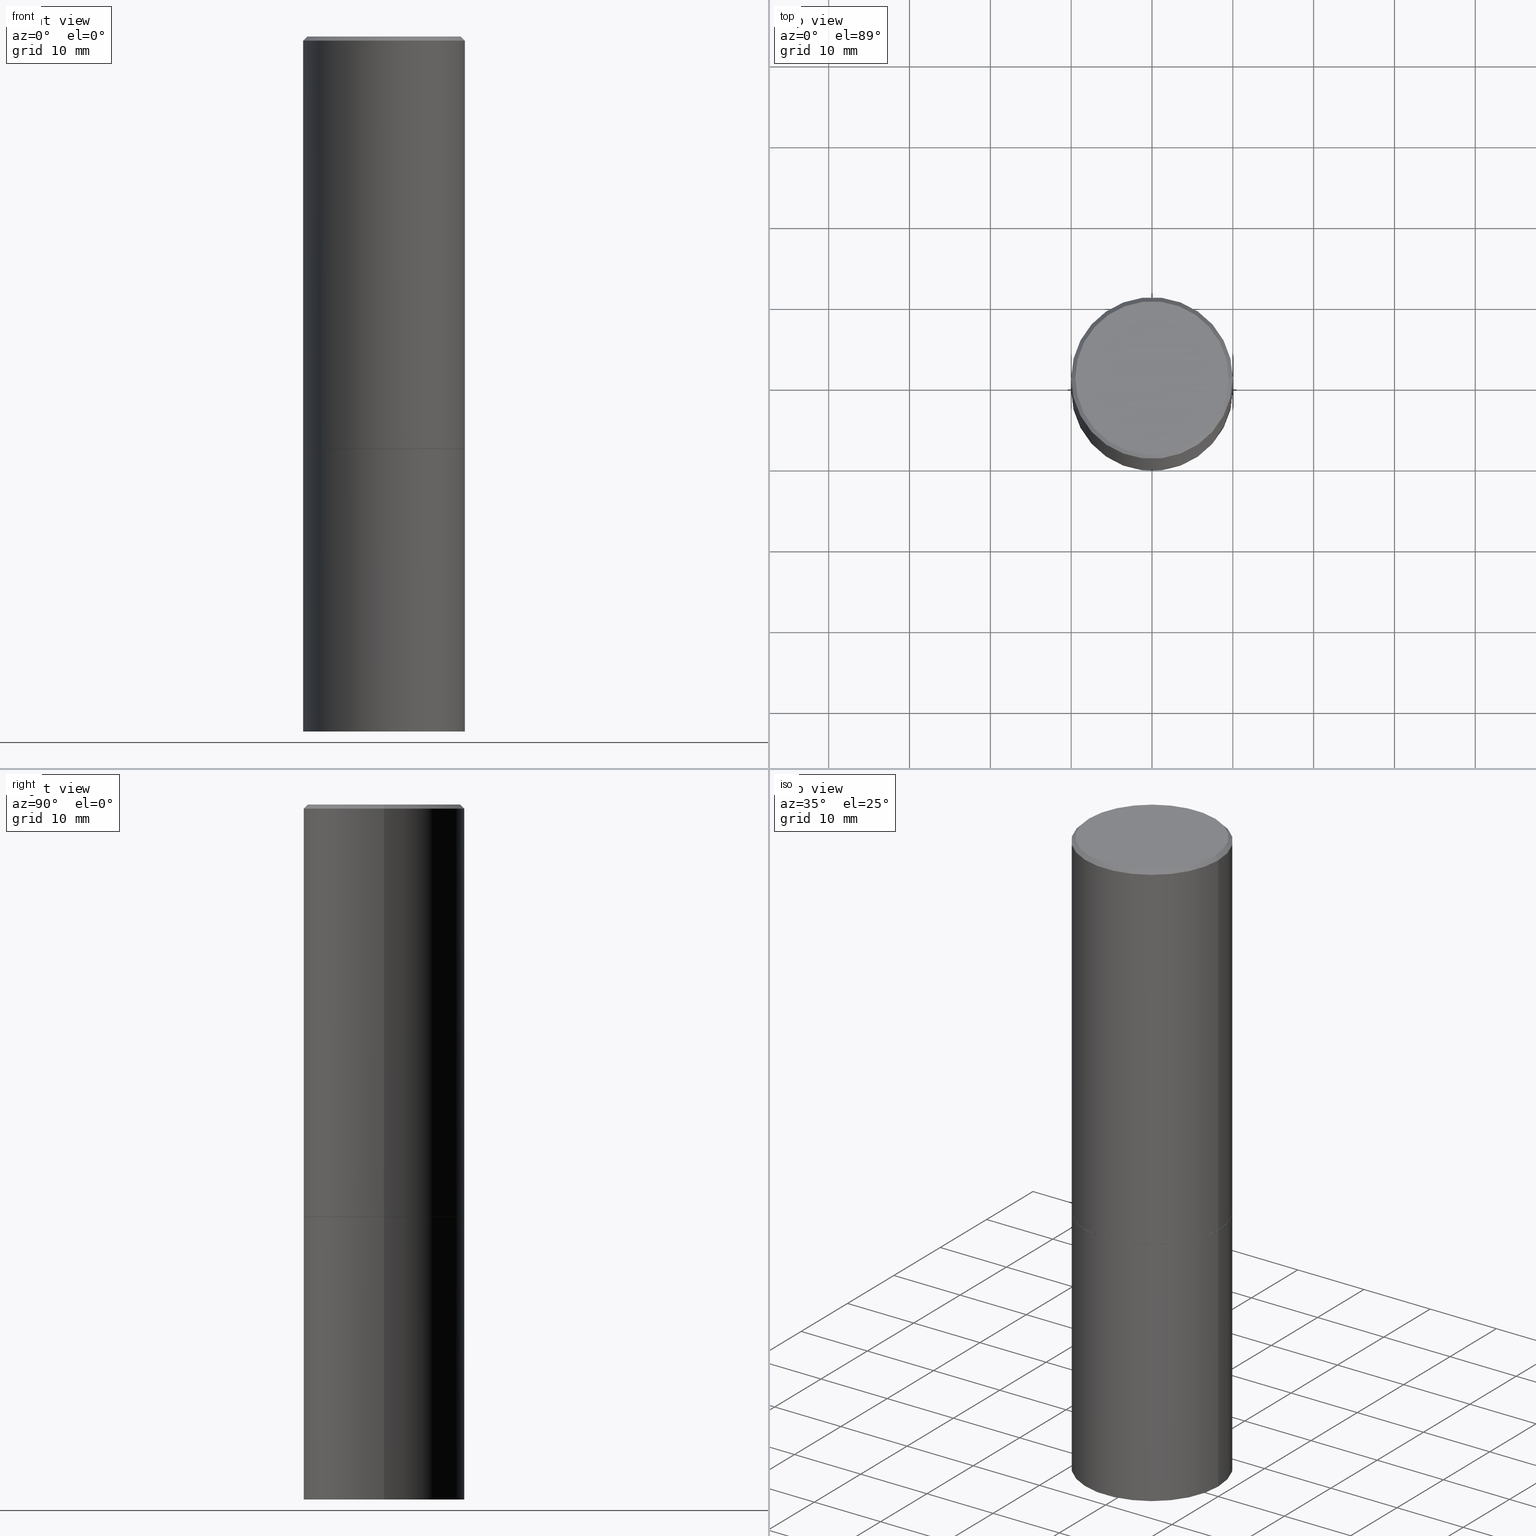
[diagram: canonical four-view strip — front | top / right | iso, engineering-drawing reading convention]
A machine part, canonical four-view strip (front | top / right | iso — engineering-drawing reading convention). The complete STEP part file that produces these views, byte-faithful:
ISO-10303-21;
HEADER;
FILE_DESCRIPTION (( 'STEP AP203' ),
    '1' );
FILE_NAME ('44990.STEP',
    '2024-02-28T08:26:00',
    ( '' ),
    ( '' ),
    'SwSTEP 2.0',
    'SolidWorks 2023',
    '' );
FILE_SCHEMA (( 'CONFIG_CONTROL_DESIGN' ));
ENDSEC;

DATA;
#1 = EDGE_LOOP ( 'NONE', ( #348, #181 ) ) ;
#2 = VECTOR ( 'NONE', #204, 39.37007874015748854 ) ;
#3 = CC_DESIGN_APPROVAL ( #314, ( #149 ) ) ;
#4 = EDGE_CURVE ( 'NONE', #269, #94, #365, .T. ) ;
#5 = PERSON_AND_ORGANIZATION ( #157, #224 ) ;
#6 = ORIENTED_EDGE ( 'NONE', *, *, #332, .F. ) ;
#7 = MECHANICAL_CONTEXT ( 'NONE', #191, 'mechanical' ) ;
#8 = ORIENTED_EDGE ( 'NONE', *, *, #80, .T. ) ;
#9 = PERSON_AND_ORGANIZATION_ROLE ( 'classification_officer' ) ;
#10 = CARTESIAN_POINT ( 'NONE',  ( 4.890937612370283668E-31, -6.982962677686305168E-17, -0.02000000000000004205 ) ) ;
#11 = EDGE_LOOP ( 'NONE', ( #255, #279, #283, #26 ) ) ;
#12 = DIRECTION ( 'NONE',  ( 2.438088387897960049E-29, -3.491481338843145188E-15, -1.000000000000000000 ) ) ;
#13 = CYLINDRICAL_SURFACE ( 'NONE', #30, 0.3936999999999999389 ) ;
#14 = AXIS2_PLACEMENT_3D ( 'NONE', #142, #330, #135 ) ;
#15 = FACE_OUTER_BOUND ( 'NONE', #11, .T. ) ;
#16 = FACE_OUTER_BOUND ( 'NONE', #318, .T. ) ;
#17 = PLANE ( 'NONE',  #276 ) ;
#18 = CC_DESIGN_PERSON_AND_ORGANIZATION_ASSIGNMENT ( #344, #56, ( #227 ) ) ;
#19 = DIRECTION ( 'NONE',  ( 1.000000000000000000, -6.982962677686265922E-15, 4.876176775795935793E-29 ) ) ;
#20 = DIRECTION ( 'NONE',  ( -2.445468806185136877E-29, 3.491481338843145188E-15, 1.000000000000000000 ) ) ;
#21 = CARTESIAN_POINT ( 'NONE',  ( 0.000000000000000000, 0.000000000000000000, 0.000000000000000000 ) ) ;
#22 = CIRCLE ( 'NONE', #41, 0.3937000000000000499 ) ;
#23 = APPROVAL_ROLE ( '' ) ;
#24 = ORIENTED_EDGE ( 'NONE', *, *, #108, .F. ) ;
#25 = PERSON_AND_ORGANIZATION ( #157, #224 ) ;
#26 = ORIENTED_EDGE ( 'NONE', *, *, #80, .F. ) ;
#27 = EDGE_CURVE ( 'NONE', #170, #94, #174, .T. ) ;
#28 = EDGE_CURVE ( 'NONE', #231, #362, #55, .T. ) ;
#29 = ORIENTED_EDGE ( 'NONE', *, *, #271, .T. ) ;
#30 = AXIS2_PLACEMENT_3D ( 'NONE', #267, #64, #213 ) ;
#31 = COORDINATED_UNIVERSAL_TIME_OFFSET ( 5, 0, .BEHIND. ) ;
#32 = CARTESIAN_POINT ( 'NONE',  ( 4.890937612370283668E-31, -6.982962677686305168E-17, -0.02000000000000004205 ) ) ;
#33 = PERSON_AND_ORGANIZATION ( #157, #224 ) ;
#34 = DIRECTION ( 'NONE',  ( -2.445468806185136597E-29, 3.491481338843145583E-15, 1.000000000000000000 ) ) ;
#35 = DIRECTION ( 'NONE',  ( 1.000000000000000000, -6.982962677686266711E-15, 0.000000000000000000 ) ) ;
#36 = DIRECTION ( 'NONE',  ( 1.000000000000000000, -6.982962677686267499E-15, 0.000000000000000000 ) ) ;
#37 = DIRECTION ( 'NONE',  ( 1.000000000000000000, -6.982962677686268288E-15, 0.000000000000000000 ) ) ;
#38 = EDGE_CURVE ( 'NONE', #113, #274, #147, .T. ) ;
#39 = CARTESIAN_POINT ( 'NONE',  ( -0.3936999999999999389, 2.797406750687513998E-15, -1.936584745033356455E-29 ) ) ;
#40 = CIRCLE ( 'NONE', #360, 0.3736999999999998101 ) ;
#41 = AXIS2_PLACEMENT_3D ( 'NONE', #364, #82, #105 ) ;
#42 = CARTESIAN_POINT ( 'NONE',  ( -0.3936999999999998279, 2.679362779428219130E-15, -0.02000000000000004205 ) ) ;
#43 = DIRECTION ( 'NONE',  ( 0.7071067811865464625, -7.319954787623252890E-15, -0.7071067811865485719 ) ) ;
#44 = PLANE ( 'NONE',  #14 ) ;
#45 = AXIS2_PLACEMENT_3D ( 'NONE', #292, #100, #128 ) ;
#46 = APPROVAL_PERSON_ORGANIZATION ( #120, #314, #23 ) ;
#47 = DIRECTION ( 'NONE',  ( 1.000000000000000000, -6.982962677686265922E-15, 4.876176775795935793E-29 ) ) ;
#48 = ORIENTED_EDGE ( 'NONE', *, *, #38, .T. ) ;
#49 = EDGE_CURVE ( 'NONE', #335, #199, #236, .T. ) ;
#50 = APPROVAL ( #112, 'UNSPECIFIED' ) ;
#51 = DIRECTION ( 'NONE',  ( 1.000000000000000000, -6.982962677686267499E-15, 0.000000000000000000 ) ) ;
#52 = COORDINATED_UNIVERSAL_TIME_OFFSET ( 5, 0, .BEHIND. ) ;
#53 = PRODUCT_RELATED_PRODUCT_CATEGORY ( 'detail', '', ( #326 ) ) ;
#54 = ORIENTED_EDGE ( 'NONE', *, *, #175, .F. ) ;
#55 = LINE ( 'NONE', #281, #58 ) ;
#56 = PERSON_AND_ORGANIZATION_ROLE ( 'creator' ) ;
#57 = ORIENTED_EDGE ( 'NONE', *, *, #163, .F. ) ;
#58 = VECTOR ( 'NONE', #180, 39.37007874015748854 ) ;
#59 =( GEOMETRIC_REPRESENTATION_CONTEXT ( 3 ) GLOBAL_UNCERTAINTY_ASSIGNED_CONTEXT ( ( #302 ) ) GLOBAL_UNIT_ASSIGNED_CONTEXT ( ( #296, #192, #137 ) ) REPRESENTATION_CONTEXT ( 'NONE', 'WORKASPACE' ) );
#60 = APPROVAL_ROLE ( '' ) ;
#61 = EDGE_LOOP ( 'NONE', ( #259, #24 ) ) ;
#62 = PERSON_AND_ORGANIZATION_ROLE ( 'creator' ) ;
#63 = CARTESIAN_POINT ( 'NONE',  ( 4.890937612370283668E-31, -6.982962677686305168E-17, -0.02000000000000004205 ) ) ;
#64 = DIRECTION ( 'NONE',  ( -2.445468806185136597E-29, 3.491481338843145583E-15, 1.000000000000000000 ) ) ;
#65 = CONICAL_SURFACE ( 'NONE', #242, 0.3936999999999998279, 0.7853981633974468357 ) ;
#66 = CARTESIAN_POINT ( 'NONE',  ( 4.890937612370283668E-31, -6.982962677686305168E-17, -0.02000000000000004205 ) ) ;
#67 = ADVANCED_FACE ( 'NONE', ( #313 ), #65, .T. ) ;
#68 = CARTESIAN_POINT ( 'NONE',  ( -0.3937000000000000499, -7.408604380961292612E-16, -2.006800000000000139 ) ) ;
#69 = DIRECTION ( 'NONE',  ( -2.445468806185136597E-29, 3.491481338843145583E-15, 1.000000000000000000 ) ) ;
#70 = AXIS2_PLACEMENT_3D ( 'NONE', #160, #187, #158 ) ;
#71 = LOCAL_TIME ( 3, 26, 0.000000000000000000, #52 ) ;
#72 = CARTESIAN_POINT ( 'NONE',  ( 0.3736999999999998101, -2.667287895133366781E-15, 8.537024980219274507E-18 ) ) ;
#73 = DIRECTION ( 'NONE',  ( 2.445468806185136597E-29, -3.491481338843145583E-15, -1.000000000000000000 ) ) ;
#74 = LINE ( 'NONE', #251, #282 ) ;
#75 = ORIENTED_EDGE ( 'NONE', *, *, #356, .F. ) ;
#76 = DIRECTION ( 'NONE',  ( -2.438088387897960049E-29, 3.491481338843145188E-15, 1.000000000000000000 ) ) ;
#77 = CIRCLE ( 'NONE', #115, 0.3926999999999999935 ) ;
#78 = VECTOR ( 'NONE', #297, 39.37007874015748143 ) ;
#79 = ORIENTED_EDGE ( 'NONE', *, *, #136, .T. ) ;
#80 = EDGE_CURVE ( 'NONE', #94, #269, #134, .T. ) ;
#81 = ADVANCED_FACE ( 'NONE', ( #152 ), #17, .T. ) ;
#82 = DIRECTION ( 'NONE',  ( -2.445468806185136597E-29, 3.491481338843145583E-15, 1.000000000000000000 ) ) ;
#83 = ORIENTED_EDGE ( 'NONE', *, *, #27, .T. ) ;
#84 = CLOSED_SHELL ( 'NONE', ( #249, #228, #67, #272, #201, #214, #285, #303 ) ) ;
#85 = CC_DESIGN_APPROVAL ( #126, ( #164 ) ) ;
#86 = APPROVAL_DATE_TIME ( #114, #126 ) ;
#87 = ORIENTED_EDGE ( 'NONE', *, *, #346, .T. ) ;
#88 = PERSON_AND_ORGANIZATION_ROLE ( 'design_owner' ) ;
#89 = ORIENTED_EDGE ( 'NONE', *, *, #136, .F. ) ;
#90 = COORDINATED_UNIVERSAL_TIME_OFFSET ( 5, 0, .BEHIND. ) ;
#91 = DIRECTION ( 'NONE',  ( 1.000000000000000000, -6.982962677686266711E-15, 0.000000000000000000 ) ) ;
#92 = CIRCLE ( 'NONE', #294, 0.3937000000000000499 ) ;
#93 = CIRCLE ( 'NONE', #124, 0.3736999999999998101 ) ;
#94 = VERTEX_POINT ( 'NONE', #42 ) ;
#95 = LINE ( 'NONE', #190, #223 ) ;
#96 = DIRECTION ( 'NONE',  ( 1.000000000000000000, -6.982962677686265922E-15, 4.876176775795935793E-29 ) ) ;
#97 = EDGE_CURVE ( 'NONE', #231, #335, #77, .T. ) ;
#98 = CIRCLE ( 'NONE', #299, 0.3937000000000000499 ) ;
#99 = FACE_OUTER_BOUND ( 'NONE', #172, .T. ) ;
#100 = DIRECTION ( 'NONE',  ( -2.445468806185136597E-29, 3.491481338843145583E-15, 1.000000000000000000 ) ) ;
#101 = APPLICATION_CONTEXT ( 'configuration controlled 3d designs of mechanical parts and assemblies' ) ;
#102 = DIRECTION ( 'NONE',  ( -2.445468806185136597E-29, 3.491481338843145583E-15, 1.000000000000000000 ) ) ;
#103 = AXIS2_PLACEMENT_3D ( 'NONE', #66, #73, #363 ) ;
#104 = CARTESIAN_POINT ( 'NONE',  ( -0.3937000000000000499, 2.797406750687514786E-15, -1.936584745033356735E-29 ) ) ;
#105 = DIRECTION ( 'NONE',  ( 1.000000000000000000, -6.982962677686265133E-15, 0.000000000000000000 ) ) ;
#106 = ORIENTED_EDGE ( 'NONE', *, *, #356, .T. ) ;
#107 = LENGTH_MEASURE_WITH_UNIT ( LENGTH_MEASURE( 0.02539999999999999897 ), #140 );
#108 = EDGE_CURVE ( 'NONE', #340, #113, #206, .T. ) ;
#109 = ORIENTED_EDGE ( 'NONE', *, *, #4, .F. ) ;
#110 = APPROVAL_PERSON_ORGANIZATION ( #5, #50, #319 ) ;
#111 = DIRECTION ( 'NONE',  ( -2.445468806185136597E-29, 3.491481338843145583E-15, 1.000000000000000000 ) ) ;
#112 = APPROVAL_STATUS ( 'not_yet_approved' ) ;
#113 = VERTEX_POINT ( 'NONE', #355 ) ;
#114 = DATE_AND_TIME ( #230, #329 ) ;
#115 = AXIS2_PLACEMENT_3D ( 'NONE', #182, #184, #37 ) ;
#116 = EDGE_LOOP ( 'NONE', ( #197, #106, #6, #125 ) ) ;
#117 = DESIGN_CONTEXT ( 'detailed design', #101, 'design' ) ;
#118 = DATE_TIME_ROLE ( 'classification_date' ) ;
#119 = CARTESIAN_POINT ( 'NONE',  ( -0.3936999999999998279, 2.679362779428219130E-15, -0.02000000000000004205 ) ) ;
#120 = PERSON_AND_ORGANIZATION ( #157, #224 ) ;
#121 = VERTEX_POINT ( 'NONE', #354 ) ;
#122 = APPROVAL_STATUS ( 'not_yet_approved' ) ;
#123 = CARTESIAN_POINT ( 'NONE',  ( 0.3937000000000000499, -2.749192406205083217E-15, 1.919750796630860172E-29 ) ) ;
#124 = AXIS2_PLACEMENT_3D ( 'NONE', #220, #273, #221 ) ;
#125 = ORIENTED_EDGE ( 'NONE', *, *, #38, .F. ) ;
#126 = APPROVAL ( #278, 'UNSPECIFIED' ) ;
#127 = DIRECTION ( 'NONE',  ( -2.445468806185136597E-29, 3.491481338843145583E-15, 1.000000000000000000 ) ) ;
#128 = DIRECTION ( 'NONE',  ( 1.000000000000000000, -6.982962677686266711E-15, 4.876176775795935793E-29 ) ) ;
#129 = AXIS2_PLACEMENT_3D ( 'NONE', #243, #245, #264 ) ;
#130 = DIRECTION ( 'NONE',  ( -1.000000000000000000, 6.982962677686265922E-15, -4.876176775795935793E-29 ) ) ;
#131 = MANIFOLD_SOLID_BREP ( 'Body-Move/Copy2[2]', #84 ) ;
#132 = CYLINDRICAL_SURFACE ( 'NONE', #353, 0.3937000000000000499 ) ;
#133 = DIRECTION ( 'NONE',  ( -1.000000000000000000, 6.982962677686265922E-15, -4.876176775795935793E-29 ) ) ;
#134 = CIRCLE ( 'NONE', #212, 0.3936999999999998279 ) ;
#135 = DIRECTION ( 'NONE',  ( -1.000000000000000000, 6.982962677686265922E-15, -4.876176775795935793E-29 ) ) ;
#136 = EDGE_CURVE ( 'NONE', #270, #170, #40, .T. ) ;
#137 =( NAMED_UNIT ( * ) SI_UNIT ( $, .STERADIAN. ) SOLID_ANGLE_UNIT ( ) );
#138 = ORIENTED_EDGE ( 'NONE', *, *, #108, .T. ) ;
#139 = MANIFOLD_SOLID_BREP ( 'Body-Move/Copy2[1]', #188 ) ;
#140 =( LENGTH_UNIT ( ) NAMED_UNIT ( * ) SI_UNIT ( $, .METRE. ) );
#141 = EDGE_LOOP ( 'NONE', ( #178, #165 ) ) ;
#142 = CARTESIAN_POINT ( 'NONE',  ( 2.609533152651356226E-15, 0.3736999999999998101, -1.300498063835582617E-15 ) ) ;
#143 = LOCAL_TIME ( 3, 26, 0.000000000000000000, #205 ) ;
#144 = APPROVAL_DATE_TIME ( #225, #50 ) ;
#145 = DATE_AND_TIME ( #316, #143 ) ;
#146 = ORIENTED_EDGE ( 'NONE', *, *, #49, .T. ) ;
#147 = LINE ( 'NONE', #123, #235 ) ;
#148 = COORDINATED_UNIVERSAL_TIME_OFFSET ( 5, 0, .BEHIND. ) ;
#149 = PRODUCT_DEFINITION ( 'UNKNOWN', '', #227, #117 ) ;
#150 = DIRECTION ( 'NONE',  ( -2.445468806185136597E-29, 3.491481338843145583E-15, 1.000000000000000000 ) ) ;
#151 = ORIENTED_EDGE ( 'NONE', *, *, #357, .F. ) ;
#152 = FACE_OUTER_BOUND ( 'NONE', #61, .T. ) ;
#153 = CONICAL_SURFACE ( 'NONE', #177, 0.3926999999999999935, 0.7853981633974141952 ) ;
#154 = LOCAL_TIME ( 3, 26, 0.000000000000000000, #31 ) ;
#155 = CARTESIAN_POINT ( 'NONE',  ( 0.3926999999999999935, -9.752405675656666190E-15, -2.007800000000000473 ) ) ;
#156 = DIRECTION ( 'NONE',  ( 1.000000000000000000, -6.982962677686267499E-15, 0.000000000000000000 ) ) ;
#157 = PERSON ( 'UNSPECIFIED', 'UNSPECIFIED', 'UNSPECIFIED', ('UNSPECIFIED'), ('UNSPECIFIED'), ('UNSPECIFIED') ) ;
#158 = DIRECTION ( 'NONE',  ( 1.000000000000000000, -6.982962677686267499E-15, 0.000000000000000000 ) ) ;
#159 = CC_DESIGN_SECURITY_CLASSIFICATION ( #164, ( #227 ) ) ;
#160 = CARTESIAN_POINT ( 'NONE',  ( 8.279868283981636714E-29, -1.182145751705512373E-14, -3.385800000000000143 ) ) ;
#161 = DIRECTION ( 'NONE',  ( -2.445468806185136597E-29, 3.491481338843145583E-15, 1.000000000000000000 ) ) ;
#162 = CARTESIAN_POINT ( 'NONE',  ( 0.3937000000000000499, -9.759388638334352204E-15, -2.007800000000000473 ) ) ;
#163 = EDGE_CURVE ( 'NONE', #121, #274, #92, .T. ) ;
#164 = SECURITY_CLASSIFICATION ( '', '', #342 ) ;
#165 = ORIENTED_EDGE ( 'NONE', *, *, #163, .T. ) ;
#166 = FACE_OUTER_BOUND ( 'NONE', #141, .T. ) ;
#167 = PLANE ( 'NONE',  #169 ) ;
#168 = LINE ( 'NONE', #104, #78 ) ;
#169 = AXIS2_PLACEMENT_3D ( 'NONE', #304, #76, #19 ) ;
#170 = VERTEX_POINT ( 'NONE', #325 ) ;
#171 = PERSON_AND_ORGANIZATION ( #157, #224 ) ;
#172 = EDGE_LOOP ( 'NONE', ( #222, #286, #195, #54 ) ) ;
#173 = APPROVAL_DATE_TIME ( #347, #314 ) ;
#174 = LINE ( 'NONE', #119, #322 ) ;
#175 = EDGE_CURVE ( 'NONE', #199, #362, #98, .T. ) ;
#176 = EDGE_CURVE ( 'NONE', #362, #199, #183, .T. ) ;
#177 = AXIS2_PLACEMENT_3D ( 'NONE', #358, #102, #327 ) ;
#178 = ORIENTED_EDGE ( 'NONE', *, *, #332, .T. ) ;
#179 = AXIS2_PLACEMENT_3D ( 'NONE', #366, #275, #253 ) ;
#180 = DIRECTION ( 'NONE',  ( 0.7071067811865232589, -2.468850131082003836E-15, 0.7071067811865715536 ) ) ;
#181 = ORIENTED_EDGE ( 'NONE', *, *, #241, .F. ) ;
#182 = CARTESIAN_POINT ( 'NONE',  ( 4.910012269058518206E-29, -7.010196232129268988E-15, -2.007800000000000473 ) ) ;
#183 = CIRCLE ( 'NONE', #265, 0.3937000000000000499 ) ;
#184 = DIRECTION ( 'NONE',  ( -2.445468806185136597E-29, 3.491481338843145583E-15, 1.000000000000000000 ) ) ;
#185 = CARTESIAN_POINT ( 'NONE',  ( -2.087702828670439639E-46, 2.980686340760894400E-32, 8.537024980200822558E-18 ) ) ;
#186 = CC_DESIGN_DATE_AND_TIME_ASSIGNMENT ( #145, #312, ( #149 ) ) ;
#187 = DIRECTION ( 'NONE',  ( -2.445468806185136597E-29, 3.491481338843145583E-15, 1.000000000000000000 ) ) ;
#188 = CLOSED_SHELL ( 'NONE', ( #215, #81, #300, #290 ) ) ;
#189 = AXIS2_PLACEMENT_3D ( 'NONE', #21, #111, #47 ) ;
#190 = CARTESIAN_POINT ( 'NONE',  ( 0.3936999999999998279, -2.770807688499513762E-15, -0.02000000000000004205 ) ) ;
#191 = APPLICATION_CONTEXT ( 'configuration controlled 3d designs of mechanical parts and assemblies' ) ;
#192 =( NAMED_UNIT ( * ) PLANE_ANGLE_UNIT ( ) SI_UNIT ( $, .RADIAN. ) );
#193 = CC_DESIGN_DATE_AND_TIME_ASSIGNMENT ( #208, #118, ( #164 ) ) ;
#194 = CARTESIAN_POINT ( 'NONE',  ( 2.749192406205132126E-15, 0.3936999999999930000, -2.007800000000001805 ) ) ;
#195 = ORIENTED_EDGE ( 'NONE', *, *, #28, .T. ) ;
#196 = FACE_OUTER_BOUND ( 'NONE', #1, .T. ) ;
#197 = ORIENTED_EDGE ( 'NONE', *, *, #289, .T. ) ;
#198 = AXIS2_PLACEMENT_3D ( 'NONE', #338, #248, #51 ) ;
#199 = VERTEX_POINT ( 'NONE', #68 ) ;
#200 = PERSON_AND_ORGANIZATION ( #157, #224 ) ;
#201 = ADVANCED_FACE ( 'NONE', ( #15 ), #288, .T. ) ;
#202 = EDGE_LOOP ( 'NONE', ( #233, #311, #109, #151 ) ) ;
#203 = CALENDAR_DATE ( 2024, 28, 2 ) ;
#204 = DIRECTION ( 'NONE',  ( -0.7071067811865232589, 7.493145998870265808E-15, 0.7071067811865715536 ) ) ;
#205 = COORDINATED_UNIVERSAL_TIME_OFFSET ( 5, 0, .BEHIND. ) ;
#206 = CIRCLE ( 'NONE', #70, 0.3937000000000000499 ) ;
#207 = ORIENTED_EDGE ( 'NONE', *, *, #27, .F. ) ;
#208 = DATE_AND_TIME ( #234, #154 ) ;
#209 = DIRECTION ( 'NONE',  ( 2.445468806185136597E-29, -3.491481338843145583E-15, -1.000000000000000000 ) ) ;
#210 = FACE_OUTER_BOUND ( 'NONE', #310, .T. ) ;
#211 = FACE_OUTER_BOUND ( 'NONE', #116, .T. ) ;
#212 = AXIS2_PLACEMENT_3D ( 'NONE', #63, #150, #35 ) ;
#213 = DIRECTION ( 'NONE',  ( 1.000000000000000000, -6.982962677686266711E-15, 4.876176775795935793E-29 ) ) ;
#214 = ADVANCED_FACE ( 'NONE', ( #99 ), #315, .T. ) ;
#215 = ADVANCED_FACE ( 'NONE', ( #211 ), #132, .T. ) ;
#216 = DIRECTION ( 'NONE',  ( 1.000000000000000000, -6.982962677686266711E-15, 4.876212485538977921E-29 ) ) ;
#217 = CARTESIAN_POINT ( 'NONE',  ( 0.3936999999999998279, -2.770807688499513762E-15, -0.02000000000000004205 ) ) ;
#218 = CONICAL_SURFACE ( 'NONE', #103, 0.3936999999999998279, 0.7853981633974468357 ) ;
#219 = CARTESIAN_POINT ( 'NONE',  ( 0.3937000000000000499, -9.755897156995509197E-15, -2.006800000000000139 ) ) ;
#220 = CARTESIAN_POINT ( 'NONE',  ( -2.087702828670439639E-46, 2.980686340760894400E-32, 8.537024980200822558E-18 ) ) ;
#221 = DIRECTION ( 'NONE',  ( 1.000000000000000000, -6.982962677686266711E-15, 4.876212485538977921E-29 ) ) ;
#222 = ORIENTED_EDGE ( 'NONE', *, *, #49, .F. ) ;
#223 = VECTOR ( 'NONE', #43, 39.37007874015748143 ) ;
#224 = ORGANIZATION ( 'UNSPECIFIED', 'UNSPECIFIED', '' ) ;
#225 = DATE_AND_TIME ( #203, #71 ) ;
#226 = CC_DESIGN_PERSON_AND_ORGANIZATION_ASSIGNMENT ( #200, #339, ( #227 ) ) ;
#227 = PRODUCT_DEFINITION_FORMATION_WITH_SPECIFIED_SOURCE ( 'ANY', '', #326, .NOT_KNOWN. ) ;
#228 = ADVANCED_FACE ( 'NONE', ( #323 ), #13, .T. ) ;
#229 = EDGE_LOOP ( 'NONE', ( #75, #138, #48, #57 ) ) ;
#230 = CALENDAR_DATE ( 2024, 28, 2 ) ;
#231 = VERTEX_POINT ( 'NONE', #155 ) ;
#232 = PERSON_AND_ORGANIZATION ( #157, #224 ) ;
#233 = ORIENTED_EDGE ( 'NONE', *, *, #176, .T. ) ;
#234 = CALENDAR_DATE ( 2024, 28, 2 ) ;
#235 = VECTOR ( 'NONE', #256, 39.37007874015748143 ) ;
#236 = LINE ( 'NONE', #350, #2 ) ;
#237 = CARTESIAN_POINT ( 'NONE',  ( 4.910012269058518206E-29, -7.010196232129268988E-15, -2.007800000000000473 ) ) ;
#238 = DIRECTION ( 'NONE',  ( -2.445468806185136597E-29, 3.491481338843145583E-15, 1.000000000000000000 ) ) ;
#239 = EDGE_CURVE ( 'NONE', #199, #94, #268, .T. ) ;
#240 = DIRECTION ( 'NONE',  ( -2.445468806185136597E-29, 3.491481338843145583E-15, 1.000000000000000000 ) ) ;
#241 = EDGE_CURVE ( 'NONE', #335, #231, #341, .T. ) ;
#242 = AXIS2_PLACEMENT_3D ( 'NONE', #32, #209, #287 ) ;
#243 = CARTESIAN_POINT ( 'NONE',  ( 4.910012269058518206E-29, -7.010196232129268988E-15, -2.007800000000000473 ) ) ;
#244 = DIMENSIONAL_EXPONENTS ( 1.000000000000000000, 0.000000000000000000, 0.000000000000000000, 0.000000000000000000, 0.000000000000000000, 0.000000000000000000, 0.000000000000000000 ) ;
#245 = DIRECTION ( 'NONE',  ( -2.445468806185136597E-29, 3.491481338843145583E-15, 1.000000000000000000 ) ) ;
#246 = CARTESIAN_POINT ( 'NONE',  ( -0.3926999999999999935, -4.214596454451133596E-15, -2.007800000000000473 ) ) ;
#247 = AXIS2_PLACEMENT_3D ( 'NONE', #352, #69, #263 ) ;
#248 = DIRECTION ( 'NONE',  ( -2.445468806185136597E-29, 3.491481338843145583E-15, 1.000000000000000000 ) ) ;
#249 = ADVANCED_FACE ( 'NONE', ( #16 ), #153, .T. ) ;
#250 = CC_DESIGN_PERSON_AND_ORGANIZATION_ASSIGNMENT ( #33, #62, ( #149 ) ) ;
#251 = CARTESIAN_POINT ( 'NONE',  ( 0.3936999999999999389, -2.749192406205082822E-15, 1.919750796630859611E-29 ) ) ;
#252 = PRODUCT_DEFINITION_SHAPE ( 'NONE', 'NONE',  #149 ) ;
#253 = DIRECTION ( 'NONE',  ( 1.000000000000000000, 0.000000000000000000, 0.000000000000000000 ) ) ;
#254 = CC_DESIGN_PERSON_AND_ORGANIZATION_ASSIGNMENT ( #171, #9, ( #164 ) ) ;
#255 = ORIENTED_EDGE ( 'NONE', *, *, #239, .F. ) ;
#256 = DIRECTION ( 'NONE',  ( -2.445468806185136877E-29, 3.491481338843145188E-15, 1.000000000000000000 ) ) ;
#257 = APPLICATION_PROTOCOL_DEFINITION ( 'international standard', 'config_control_design', 1994, #101 ) ;
#258 = EDGE_LOOP ( 'NONE', ( #87, #79 ) ) ;
#259 = ORIENTED_EDGE ( 'NONE', *, *, #289, .F. ) ;
#260 = ORIENTED_EDGE ( 'NONE', *, *, #346, .F. ) ;
#261 = APPROVAL_PERSON_ORGANIZATION ( #232, #126, #60 ) ;
#262 = DIRECTION ( 'NONE',  ( -2.445468806185136877E-29, 3.491481338843145188E-15, 1.000000000000000000 ) ) ;
#263 = DIRECTION ( 'NONE',  ( 1.000000000000000000, -6.982962677686268288E-15, 0.000000000000000000 ) ) ;
#264 = DIRECTION ( 'NONE',  ( 1.000000000000000000, -6.982962677686268288E-15, 0.000000000000000000 ) ) ;
#265 = AXIS2_PLACEMENT_3D ( 'NONE', #321, #161, #36 ) ;
#266 = AXIS2_PLACEMENT_3D ( 'NONE', #194, #307, #133 ) ;
#267 = CARTESIAN_POINT ( 'NONE',  ( 0.000000000000000000, 0.000000000000000000, 0.000000000000000000 ) ) ;
#268 = LINE ( 'NONE', #39, #328 ) ;
#269 = VERTEX_POINT ( 'NONE', #217 ) ;
#270 = VERTEX_POINT ( 'NONE', #72 ) ;
#271 = EDGE_CURVE ( 'NONE', #270, #269, #95, .T. ) ;
#272 = ADVANCED_FACE ( 'NONE', ( #210 ), #218, .T. ) ;
#273 = DIRECTION ( 'NONE',  ( -2.445468806185136597E-29, 3.491481338843145583E-15, 1.000000000000000000 ) ) ;
#274 = VERTEX_POINT ( 'NONE', #162 ) ;
#275 = DIRECTION ( 'NONE',  ( 0.000000000000000000, 0.000000000000000000, 1.000000000000000000 ) ) ;
#276 = AXIS2_PLACEMENT_3D ( 'NONE', #291, #12, #130 ) ;
#277 = PLANE ( 'NONE',  #266 ) ;
#278 = APPROVAL_STATUS ( 'not_yet_approved' ) ;
#279 = ORIENTED_EDGE ( 'NONE', *, *, #175, .T. ) ;
#280 = SHAPE_DEFINITION_REPRESENTATION ( #252, #301 ) ;
#281 = CARTESIAN_POINT ( 'NONE',  ( 0.3926999999999999935, -9.752405675656666190E-15, -2.007800000000000473 ) ) ;
#282 = VECTOR ( 'NONE', #20, 39.37007874015748143 ) ;
#283 = ORIENTED_EDGE ( 'NONE', *, *, #357, .T. ) ;
#284 = CALENDAR_DATE ( 2024, 28, 2 ) ;
#285 = ADVANCED_FACE ( 'NONE', ( #196 ), #167, .F. ) ;
#286 = ORIENTED_EDGE ( 'NONE', *, *, #241, .T. ) ;
#287 = DIRECTION ( 'NONE',  ( -1.000000000000000000, 6.982962677686266711E-15, 0.000000000000000000 ) ) ;
#288 = CYLINDRICAL_SURFACE ( 'NONE', #45, 0.3936999999999999389 ) ;
#289 = EDGE_CURVE ( 'NONE', #113, #340, #309, .T. ) ;
#290 = ADVANCED_FACE ( 'NONE', ( #361 ), #306, .T. ) ;
#291 = CARTESIAN_POINT ( 'NONE',  ( 2.749192406205166047E-15, 0.3936999999999882260, -3.385800000000001919 ) ) ;
#292 = CARTESIAN_POINT ( 'NONE',  ( 0.000000000000000000, 0.000000000000000000, 0.000000000000000000 ) ) ;
#293 = CARTESIAN_POINT ( 'NONE',  ( 0.000000000000000000, 0.000000000000000000, 0.000000000000000000 ) ) ;
#294 = AXIS2_PLACEMENT_3D ( 'NONE', #237, #295, #351 ) ;
#295 = DIRECTION ( 'NONE',  ( -2.445468806185136597E-29, 3.491481338843145583E-15, 1.000000000000000000 ) ) ;
#296 =( CONVERSION_BASED_UNIT ( 'INCH', #107 ) LENGTH_UNIT ( ) NAMED_UNIT ( #244 ) );
#297 = DIRECTION ( 'NONE',  ( -2.445468806185136877E-29, 3.491481338843145188E-15, 1.000000000000000000 ) ) ;
#298 = ORIENTED_EDGE ( 'NONE', *, *, #28, .F. ) ;
#299 = AXIS2_PLACEMENT_3D ( 'NONE', #324, #127, #156 ) ;
#300 = ADVANCED_FACE ( 'NONE', ( #166 ), #277, .F. ) ;
#301 = ADVANCED_BREP_SHAPE_REPRESENTATION ( '44990', ( #139, #131, #179 ), #59 ) ;
#302 = UNCERTAINTY_MEASURE_WITH_UNIT (LENGTH_MEASURE( 1.000000000000000082E-05 ), #296, 'distance_accuracy_value', 'NONE');
#303 = ADVANCED_FACE ( 'NONE', ( #331 ), #44, .F. ) ;
#304 = CARTESIAN_POINT ( 'NONE',  ( 4.910012269058518206E-29, -7.010196232129268988E-15, -2.007800000000000473 ) ) ;
#305 = ORIENTED_EDGE ( 'NONE', *, *, #4, .T. ) ;
#306 = CYLINDRICAL_SURFACE ( 'NONE', #189, 0.3937000000000000499 ) ;
#307 = DIRECTION ( 'NONE',  ( 2.438088387897960049E-29, -3.491481338843145188E-15, -1.000000000000000000 ) ) ;
#308 = EDGE_LOOP ( 'NONE', ( #89, #29, #305, #207 ) ) ;
#309 = CIRCLE ( 'NONE', #198, 0.3937000000000000499 ) ;
#310 = EDGE_LOOP ( 'NONE', ( #343, #260, #83, #8 ) ) ;
#311 = ORIENTED_EDGE ( 'NONE', *, *, #239, .T. ) ;
#312 = DATE_TIME_ROLE ( 'creation_date' ) ;
#313 = FACE_OUTER_BOUND ( 'NONE', #308, .T. ) ;
#314 = APPROVAL ( #122, 'UNSPECIFIED' ) ;
#315 = CONICAL_SURFACE ( 'NONE', #247, 0.3926999999999999935, 0.7853981633974141952 ) ;
#316 = CALENDAR_DATE ( 2024, 28, 2 ) ;
#317 = CC_DESIGN_APPROVAL ( #50, ( #227 ) ) ;
#318 = EDGE_LOOP ( 'NONE', ( #320, #146, #333, #298 ) ) ;
#319 = APPROVAL_ROLE ( '' ) ;
#320 = ORIENTED_EDGE ( 'NONE', *, *, #97, .T. ) ;
#321 = CARTESIAN_POINT ( 'NONE',  ( 4.907566800252332603E-29, -7.006704750790425192E-15, -2.006800000000000139 ) ) ;
#322 = VECTOR ( 'NONE', #345, 39.37007874015748143 ) ;
#323 = FACE_OUTER_BOUND ( 'NONE', #202, .T. ) ;
#324 = CARTESIAN_POINT ( 'NONE',  ( 4.907566800252332603E-29, -7.006704750790425192E-15, -2.006800000000000139 ) ) ;
#325 = CARTESIAN_POINT ( 'NONE',  ( -0.3736999999999998101, 2.644447966039787875E-15, 8.537024980182450727E-18 ) ) ;
#326 = PRODUCT ( '44990', '44990', '', ( #7 ) ) ;
#327 = DIRECTION ( 'NONE',  ( 1.000000000000000000, -6.982962677686268288E-15, 0.000000000000000000 ) ) ;
#328 = VECTOR ( 'NONE', #262, 39.37007874015748143 ) ;
#329 = LOCAL_TIME ( 3, 26, 0.000000000000000000, #148 ) ;
#330 = DIRECTION ( 'NONE',  ( 2.438088387897960049E-29, -3.491481338843145188E-15, -1.000000000000000000 ) ) ;
#331 = FACE_OUTER_BOUND ( 'NONE', #258, .T. ) ;
#332 = EDGE_CURVE ( 'NONE', #274, #121, #22, .T. ) ;
#333 = ORIENTED_EDGE ( 'NONE', *, *, #176, .F. ) ;
#334 = CC_DESIGN_PERSON_AND_ORGANIZATION_ASSIGNMENT ( #25, #88, ( #326 ) ) ;
#335 = VERTEX_POINT ( 'NONE', #246 ) ;
#336 = LOCAL_TIME ( 3, 26, 0.000000000000000000, #90 ) ;
#337 = APPLICATION_PROTOCOL_DEFINITION ( 'international standard', 'config_control_design', 1994, #191 ) ;
#338 = CARTESIAN_POINT ( 'NONE',  ( 8.279868283981636714E-29, -1.182145751705512373E-14, -3.385800000000000143 ) ) ;
#339 = PERSON_AND_ORGANIZATION_ROLE ( 'design_supplier' ) ;
#340 = VERTEX_POINT ( 'NONE', #359 ) ;
#341 = CIRCLE ( 'NONE', #129, 0.3926999999999999935 ) ;
#342 = SECURITY_CLASSIFICATION_LEVEL ( 'unclassified' ) ;
#343 = ORIENTED_EDGE ( 'NONE', *, *, #271, .F. ) ;
#344 = PERSON_AND_ORGANIZATION ( #157, #224 ) ;
#345 = DIRECTION ( 'NONE',  ( -0.7071067811865464625, 2.468850131082245622E-15, -0.7071067811865485719 ) ) ;
#346 = EDGE_CURVE ( 'NONE', #170, #270, #93, .T. ) ;
#347 = DATE_AND_TIME ( #284, #336 ) ;
#348 = ORIENTED_EDGE ( 'NONE', *, *, #97, .F. ) ;
#349 = AXIS2_PLACEMENT_3D ( 'NONE', #10, #34, #91 ) ;
#350 = CARTESIAN_POINT ( 'NONE',  ( -0.3926999999999999935, -4.219894908799355209E-15, -2.007800000000000473 ) ) ;
#351 = DIRECTION ( 'NONE',  ( 1.000000000000000000, -6.982962677686265133E-15, 0.000000000000000000 ) ) ;
#352 = CARTESIAN_POINT ( 'NONE',  ( 4.910012269058518206E-29, -7.010196232129268988E-15, -2.007800000000000473 ) ) ;
#353 = AXIS2_PLACEMENT_3D ( 'NONE', #293, #240, #96 ) ;
#354 = CARTESIAN_POINT ( 'NONE',  ( -0.3937000000000000499, -6.618420123904681571E-15, -2.007800000000000473 ) ) ;
#355 = CARTESIAN_POINT ( 'NONE',  ( 0.3937000000000000499, -1.457064992326020852E-14, -3.385800000000000143 ) ) ;
#356 = EDGE_CURVE ( 'NONE', #340, #121, #168, .T. ) ;
#357 = EDGE_CURVE ( 'NONE', #362, #269, #74, .T. ) ;
#358 = CARTESIAN_POINT ( 'NONE',  ( 4.910012269058518206E-29, -7.010196232129268988E-15, -2.007800000000000473 ) ) ;
#359 = CARTESIAN_POINT ( 'NONE',  ( -0.3937000000000000499, -6.618420123904681571E-15, -3.385800000000000143 ) ) ;
#360 = AXIS2_PLACEMENT_3D ( 'NONE', #185, #238, #216 ) ;
#361 = FACE_OUTER_BOUND ( 'NONE', #229, .T. ) ;
#362 = VERTEX_POINT ( 'NONE', #219 ) ;
#363 = DIRECTION ( 'NONE',  ( -1.000000000000000000, 6.982962677686266711E-15, 0.000000000000000000 ) ) ;
#364 = CARTESIAN_POINT ( 'NONE',  ( 4.910012269058518206E-29, -7.010196232129268988E-15, -2.007800000000000473 ) ) ;
#365 = CIRCLE ( 'NONE', #349, 0.3936999999999998279 ) ;
#366 = CARTESIAN_POINT ( 'NONE',  ( 0.000000000000000000, 0.000000000000000000, 0.000000000000000000 ) ) ;
ENDSEC;
END-ISO-10303-21;
